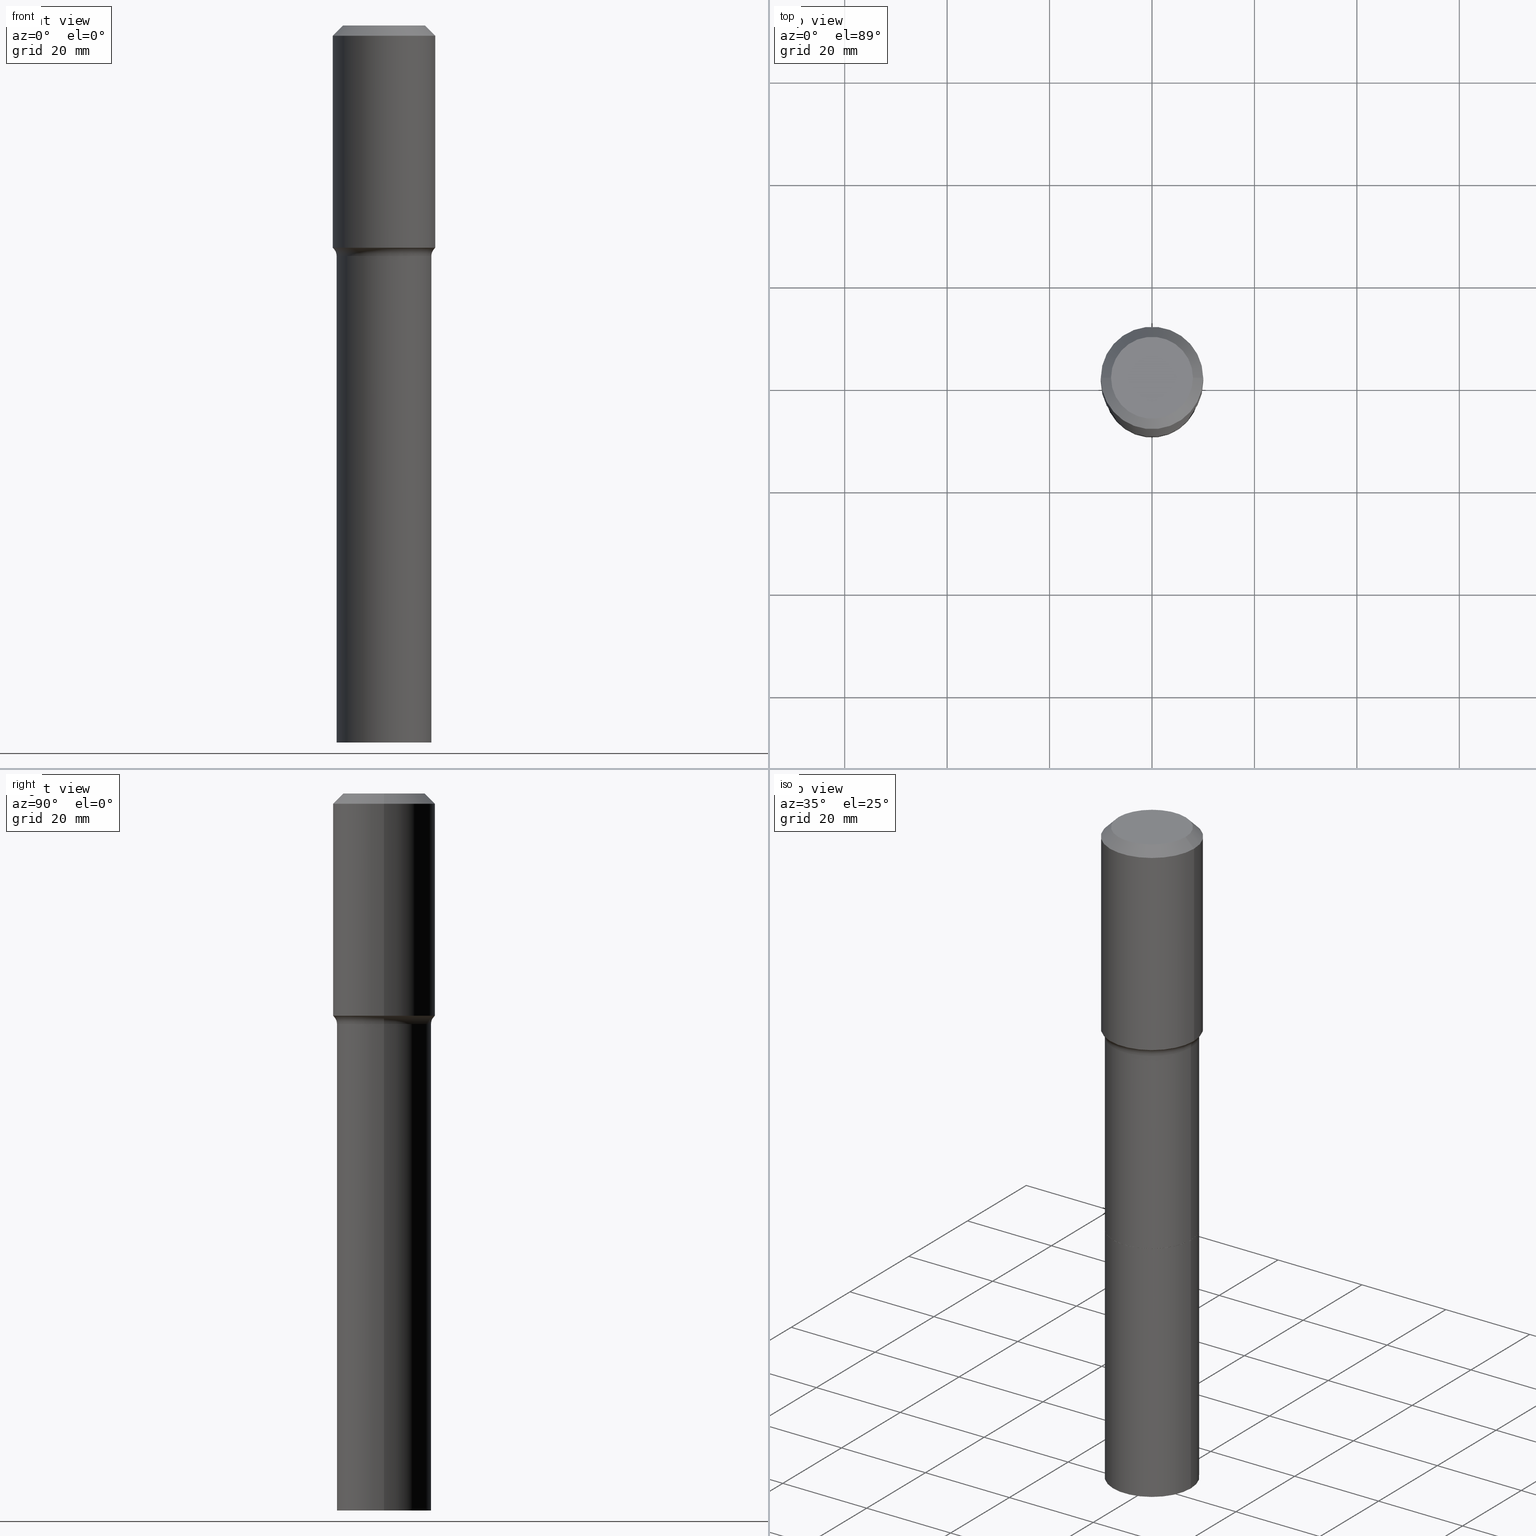
[diagram: canonical four-view strip — front | top / right | iso, engineering-drawing reading convention]
A machine part, canonical four-view strip (front | top / right | iso — engineering-drawing reading convention). The complete STEP part file that produces these views, byte-faithful:
ISO-10303-21;
HEADER;
FILE_DESCRIPTION (( 'STEP AP203' ),
    '1' );
FILE_NAME ('67811.STEP',
    '2025-04-01T15:30:50',
    ( '' ),
    ( '' ),
    'SwSTEP 2.0',
    'SolidWorks 2024',
    '' );
FILE_SCHEMA (( 'CONFIG_CONTROL_DESIGN' ));
ENDSEC;

DATA;
#1 = VERTEX_POINT ( 'NONE', #82 ) ;
#2 = EDGE_CURVE ( 'NONE', #196, #352, #4, .T. ) ;
#3 = ORIENTED_EDGE ( 'NONE', *, *, #448, .F. ) ;
#4 = CIRCLE ( 'NONE', #32, 0.3641499999999999737 ) ;
#5 = DIRECTION ( 'NONE',  ( 0.6819983600625072473, -2.208861293262565339E-15, 0.7313537016191622442 ) ) ;
#6 = CARTESIAN_POINT ( 'NONE',  ( -0.3937000000000000499, 2.474273165584572449E-15, -0.07874000000000053179 ) ) ;
#7 =( CONVERSION_BASED_UNIT ( 'INCH', #214 ) LENGTH_UNIT ( ) NAMED_UNIT ( #147 ) );
#8 = ORIENTED_EDGE ( 'NONE', *, *, #410, .T. ) ;
#9 = EDGE_CURVE ( 'NONE', #80, #358, #46, .T. ) ;
#10 = LINE ( 'NONE', #6, #250 ) ;
#11 = EDGE_CURVE ( 'NONE', #472, #232, #127, .T. ) ;
#12 = CARTESIAN_POINT ( 'NONE',  ( 1.347893496593123646E-28, -1.924434684343564878E-14, -5.511800000000000033 ) ) ;
#13 = AXIS2_PLACEMENT_3D ( 'NONE', #390, #194, #277 ) ;
#14 = AXIS2_PLACEMENT_3D ( 'NONE', #272, #24, #96 ) ;
#15 = DIRECTION ( 'NONE',  ( -2.445468806185136597E-29, 3.491481338843145583E-15, 1.000000000000000000 ) ) ;
#16 = DIRECTION ( 'NONE',  ( 1.000000000000000000, -6.982962677686263555E-15, 0.000000000000000000 ) ) ;
#17 = DIRECTION ( 'NONE',  ( 1.000000000000000000, -6.982962677686263555E-15, 0.000000000000000000 ) ) ;
#18 = CARTESIAN_POINT ( 'NONE',  ( 4.199457173566643198E-29, -5.995711872379897322E-15, -1.717240131194999853 ) ) ;
#19 = MECHANICAL_CONTEXT ( 'NONE', #222, 'mechanical' ) ;
#20 = DIRECTION ( 'NONE',  ( -1.000000000000000000, 6.982962677686265922E-15, -4.876176775795935793E-29 ) ) ;
#21 = PERSON_AND_ORGANIZATION_ROLE ( 'classification_officer' ) ;
#22 = AXIS2_PLACEMENT_3D ( 'NONE', #411, #295, #164 ) ;
#23 = CARTESIAN_POINT ( 'NONE',  ( 8.327554925702245883E-29, -1.188954140316256158E-14, -3.405299999999999994 ) ) ;
#24 = DIRECTION ( 'NONE',  ( -2.445468806185136597E-29, 3.491481338843145583E-15, 1.000000000000000000 ) ) ;
#25 = PRODUCT_DEFINITION_FORMATION_WITH_SPECIFIED_SOURCE ( 'ANY', '', #221, .NOT_KNOWN. ) ;
#26 = COORDINATED_UNIVERSAL_TIME_OFFSET ( 5, 0, .BEHIND. ) ;
#27 = FACE_OUTER_BOUND ( 'NONE', #39, .T. ) ;
#28 = VERTEX_POINT ( 'NONE', #518 ) ;
#29 = EDGE_CURVE ( 'NONE', #1, #407, #307, .T. ) ;
#30 = APPROVAL_STATUS ( 'not_yet_approved' ) ;
#31 = ORIENTED_EDGE ( 'NONE', *, *, #448, .T. ) ;
#32 = AXIS2_PLACEMENT_3D ( 'NONE', #402, #364, #40 ) ;
#33 = DIRECTION ( 'NONE',  ( -6.982962677686266711E-15, -1.000000000000000000, 3.491481338843145583E-15 ) ) ;
#34 = ORIENTED_EDGE ( 'NONE', *, *, #495, .T. ) ;
#35 = LOCAL_TIME ( 11, 30, 50.00000000000000000, #26 ) ;
#36 = ADVANCED_FACE ( 'NONE', ( #294 ), #449, .F. ) ;
#37 = EDGE_LOOP ( 'NONE', ( #482, #435 ) ) ;
#38 = SHAPE_DEFINITION_REPRESENTATION ( #125, #181 ) ;
#39 = EDGE_LOOP ( 'NONE', ( #310, #353 ) ) ;
#40 = DIRECTION ( 'NONE',  ( 1.000000000000000000, -6.982962677686263555E-15, 0.000000000000000000 ) ) ;
#41 = AXIS2_PLACEMENT_3D ( 'NONE', #83, #481, #90 ) ;
#42 = CIRCLE ( 'NONE', #243, 0.3937000000000000499 ) ;
#43 = ORIENTED_EDGE ( 'NONE', *, *, #280, .F. ) ;
#44 = ORIENTED_EDGE ( 'NONE', *, *, #330, .F. ) ;
#45 = DIRECTION ( 'NONE',  ( -2.445468806185136597E-29, 3.491481338843145583E-15, 1.000000000000000000 ) ) ;
#46 = LINE ( 'NONE', #208, #460 ) ;
#47 = VECTOR ( 'NONE', #88, 39.37007874015748143 ) ;
#48 = CARTESIAN_POINT ( 'NONE',  ( 4.332881630798825211E-29, -6.186206636162284593E-15, -1.771800000000000042 ) ) ;
#49 = VERTEX_POINT ( 'NONE', #218 ) ;
#50 = CARTESIAN_POINT ( 'NONE',  ( 8.328777660105338684E-29, -1.189128714383198387E-14, -3.405800000000000161 ) ) ;
#51 = APPROVAL ( #463, 'UNSPECIFIED' ) ;
#52 = MANIFOLD_SOLID_BREP ( 'Body-Move/Copy2[2]', #446 ) ;
#53 = CARTESIAN_POINT ( 'NONE',  ( 1.925562137990189780E-30, -2.749192406205111123E-16, -0.07874000000000053179 ) ) ;
#54 = CARTESIAN_POINT ( 'NONE',  ( -0.4441499999999997672, -3.030331075283801272E-15, -1.771800000000000042 ) ) ;
#55 = VECTOR ( 'NONE', #371, 39.37007874015748143 ) ;
#56 = CIRCLE ( 'NONE', #397, 0.3856417038704660349 ) ;
#57 = LOCAL_TIME ( 11, 30, 50.00000000000000000, #426 ) ;
#58 = LINE ( 'NONE', #464, #477 ) ;
#59 = DATE_AND_TIME ( #499, #57 ) ;
#60 = DIRECTION ( 'NONE',  ( -2.445468806185136597E-29, 3.491481338843145583E-15, 1.000000000000000000 ) ) ;
#61 = AXIS2_PLACEMENT_3D ( 'NONE', #12, #378, #16 ) ;
#62 = ADVANCED_FACE ( 'NONE', ( #409 ), #324, .T. ) ;
#63 = CARTESIAN_POINT ( 'NONE',  ( 4.332881630798825211E-29, -6.186206636162284593E-15, -1.771800000000000042 ) ) ;
#64 = COORDINATED_UNIVERSAL_TIME_OFFSET ( 5, 0, .BEHIND. ) ;
#65 = DIRECTION ( 'NONE',  ( -1.000000000000000000, 6.982962677686265922E-15, -4.876176775795935793E-29 ) ) ;
#66 = ORIENTED_EDGE ( 'NONE', *, *, #9, .F. ) ;
#67 = DIRECTION ( 'NONE',  ( -2.445468806185136877E-29, 3.491481338843145188E-15, 1.000000000000000000 ) ) ;
#68 = ORIENTED_EDGE ( 'NONE', *, *, #242, .F. ) ;
#69 = EDGE_LOOP ( 'NONE', ( #281, #240, #235, #249 ) ) ;
#70 = DIRECTION ( 'NONE',  ( -2.445468806185136597E-29, 3.491481338843145583E-15, 1.000000000000000000 ) ) ;
#71 = EDGE_CURVE ( 'NONE', #114, #212, #335, .T. ) ;
#72 = ORIENTED_EDGE ( 'NONE', *, *, #171, .T. ) ;
#73 = ORIENTED_EDGE ( 'NONE', *, *, #29, .T. ) ;
#74 = AXIS2_PLACEMENT_3D ( 'NONE', #260, #412, #453 ) ;
#75 = EDGE_CURVE ( 'NONE', #49, #360, #227, .T. ) ;
#76 = ORIENTED_EDGE ( 'NONE', *, *, #385, .T. ) ;
#77 = AXIS2_PLACEMENT_3D ( 'NONE', #48, #165, #323 ) ;
#78 = AXIS2_PLACEMENT_3D ( 'NONE', #461, #498, #139 ) ;
#79 = LOCAL_TIME ( 11, 30, 50.00000000000000000, #415 ) ;
#80 = VERTEX_POINT ( 'NONE', #173 ) ;
#81 = CC_DESIGN_PERSON_AND_ORGANIZATION_ASSIGNMENT ( #509, #134, ( #25 ) ) ;
#82 = CARTESIAN_POINT ( 'NONE',  ( -0.3641499999999998072, -6.450432647392020023E-15, -1.771800000000000042 ) ) ;
#83 = CARTESIAN_POINT ( 'NONE',  ( 4.178324741385413824E-29, -5.965540359899951370E-15, -1.708598666569574487 ) ) ;
#84 =( NAMED_UNIT ( * ) PLANE_ANGLE_UNIT ( ) SI_UNIT ( $, .RADIAN. ) );
#85 = DIRECTION ( 'NONE',  ( 1.000000000000000000, -6.982962677686263555E-15, 0.000000000000000000 ) ) ;
#86 = FACE_OUTER_BOUND ( 'NONE', #37, .T. ) ;
#87 = FACE_OUTER_BOUND ( 'NONE', #391, .T. ) ;
#88 = DIRECTION ( 'NONE',  ( -2.445468806185136877E-29, 3.491481338843145188E-15, 1.000000000000000000 ) ) ;
#89 = CARTESIAN_POINT ( 'NONE',  ( -4.713871149261283817E-47, 6.730158695841841775E-33, 1.927594061857935365E-18 ) ) ;
#90 = DIRECTION ( 'NONE',  ( 1.000000000000000000, -6.982962677686266711E-15, 0.000000000000000000 ) ) ;
#91 = DIRECTION ( 'NONE',  ( 1.000000000000000000, -6.982962677686265922E-15, 0.000000000000000000 ) ) ;
#92 = CC_DESIGN_PERSON_AND_ORGANIZATION_ASSIGNMENT ( #423, #224, ( #25 ) ) ;
#93 = CARTESIAN_POINT ( 'NONE',  ( 1.925562137990189780E-30, -2.749192406205111123E-16, -0.07874000000000053179 ) ) ;
#94 = TOROIDAL_SURFACE ( 'NONE', #77, 0.4441499999999997672, 0.08000000000000002942 ) ;
#95 = DIRECTION ( 'NONE',  ( 0.7071067811865452413, -7.319954787623248157E-15, -0.7071067811865497932 ) ) ;
#96 = DIRECTION ( 'NONE',  ( 1.000000000000000000, -6.982962677686263555E-15, 0.000000000000000000 ) ) ;
#97 = DIRECTION ( 'NONE',  ( -2.445468806185136597E-29, 3.491481338843145583E-15, 1.000000000000000000 ) ) ;
#98 = DIRECTION ( 'NONE',  ( 2.445468806185136597E-29, -3.491481338843145583E-15, -1.000000000000000000 ) ) ;
#99 = DIRECTION ( 'NONE',  ( 0.000000000000000000, 0.000000000000000000, 1.000000000000000000 ) ) ;
#100 = PLANE ( 'NONE',  #156 ) ;
#101 = EDGE_LOOP ( 'NONE', ( #428, #34 ) ) ;
#102 = FACE_OUTER_BOUND ( 'NONE', #140, .T. ) ;
#103 = CIRCLE ( 'NONE', #168, 0.3149600000000000177 ) ;
#104 = CC_DESIGN_DATE_AND_TIME_ASSIGNMENT ( #493, #341, ( #138 ) ) ;
#105 = DIRECTION ( 'NONE',  ( 1.000000000000000000, -6.982962677686265922E-15, 4.876176775795935232E-29 ) ) ;
#106 = ORIENTED_EDGE ( 'NONE', *, *, #202, .F. ) ;
#107 = APPROVAL_ROLE ( '' ) ;
#108 = CARTESIAN_POINT ( 'NONE',  ( 8.328777660105338684E-29, -1.189128714383198387E-14, -3.405800000000000161 ) ) ;
#109 = ADVANCED_FACE ( 'NONE', ( #458 ), #505, .T. ) ;
#110 = ORIENTED_EDGE ( 'NONE', *, *, #385, .F. ) ;
#111 = FACE_OUTER_BOUND ( 'NONE', #119, .T. ) ;
#112 = ORIENTED_EDGE ( 'NONE', *, *, #9, .T. ) ;
#113 = AXIS2_PLACEMENT_3D ( 'NONE', #210, #489, #174 ) ;
#114 = VERTEX_POINT ( 'NONE', #375 ) ;
#115 = ORIENTED_EDGE ( 'NONE', *, *, #144, .T. ) ;
#116 = EDGE_LOOP ( 'NONE', ( #154, #159 ) ) ;
#117 = DATE_AND_TIME ( #155, #279 ) ;
#118 = EDGE_LOOP ( 'NONE', ( #312, #368, #398, #395 ) ) ;
#119 = EDGE_LOOP ( 'NONE', ( #465, #160, #392, #3 ) ) ;
#120 = DIRECTION ( 'NONE',  ( -0.7071067811865452413, 2.468850131082233000E-15, -0.7071067811865497932 ) ) ;
#121 = ORIENTED_EDGE ( 'NONE', *, *, #182, .T. ) ;
#122 = DIRECTION ( 'NONE',  ( -2.445468806185136597E-29, 3.491481338843145583E-15, 1.000000000000000000 ) ) ;
#123 = ADVANCED_FACE ( 'NONE', ( #126 ), #430, .T. ) ;
#124 = CARTESIAN_POINT ( 'NONE',  ( 0.3641499999999998627, -2.542845859079452817E-15, 1.775659772906089126E-29 ) ) ;
#125 = PRODUCT_DEFINITION_SHAPE ( 'NONE', 'NONE',  #138 ) ;
#126 = FACE_OUTER_BOUND ( 'NONE', #393, .T. ) ;
#127 = CIRCLE ( 'NONE', #299, 0.3641499999999999737 ) ;
#128 = DIRECTION ( 'NONE',  ( 1.000000000000000000, -6.982962677686269866E-15, 0.000000000000000000 ) ) ;
#129 = LINE ( 'NONE', #290, #413 ) ;
#130 = CARTESIAN_POINT ( 'NONE',  ( 8.328777660105338684E-29, -1.189128714383198387E-14, -3.405800000000000161 ) ) ;
#131 =( LENGTH_UNIT ( ) NAMED_UNIT ( * ) SI_UNIT ( $, .METRE. ) );
#132 = EDGE_CURVE ( 'NONE', #350, #163, #510, .T. ) ;
#133 = DIRECTION ( 'NONE',  ( -0.6819983600625072473, 7.399397606724319708E-15, 0.7313537016191622442 ) ) ;
#134 = PERSON_AND_ORGANIZATION_ROLE ( 'creator' ) ;
#135 = CYLINDRICAL_SURFACE ( 'NONE', #314, 0.3641499999999998627 ) ;
#136 = DIRECTION ( 'NONE',  ( -2.445468806185136877E-29, 3.491481338843145188E-15, 1.000000000000000000 ) ) ;
#137 = SECURITY_CLASSIFICATION_LEVEL ( 'unclassified' ) ;
#138 = PRODUCT_DEFINITION ( 'UNKNOWN', '', #25, #501 ) ;
#139 = DIRECTION ( 'NONE',  ( 1.000000000000000000, -6.982962677686269866E-15, 0.000000000000000000 ) ) ;
#140 = EDGE_LOOP ( 'NONE', ( #110, #389, #276, #356 ) ) ;
#141 = PERSON_AND_ORGANIZATION ( #269, #195 ) ;
#142 = AXIS2_PLACEMENT_3D ( 'NONE', #18, #228, #492 ) ;
#143 = VECTOR ( 'NONE', #133, 39.37007874015748854 ) ;
#144 = EDGE_CURVE ( 'NONE', #350, #1, #284, .T. ) ;
#145 = VECTOR ( 'NONE', #136, 39.37007874015748143 ) ;
#146 = DIRECTION ( 'NONE',  ( -2.445468806185136597E-29, 3.491481338843145583E-15, 1.000000000000000000 ) ) ;
#147 = DIMENSIONAL_EXPONENTS ( 1.000000000000000000, 0.000000000000000000, 0.000000000000000000, 0.000000000000000000, 0.000000000000000000, 0.000000000000000000, 0.000000000000000000 ) ;
#148 = ORIENTED_EDGE ( 'NONE', *, *, #171, .F. ) ;
#149 = APPROVAL_DATE_TIME ( #59, #239 ) ;
#150 = EDGE_CURVE ( 'NONE', #28, #49, #129, .T. ) ;
#151 = LINE ( 'NONE', #311, #373 ) ;
#152 = ORIENTED_EDGE ( 'NONE', *, *, #132, .T. ) ;
#153 = CLOSED_SHELL ( 'NONE', ( #394, #293, #62, #399 ) ) ;
#154 = ORIENTED_EDGE ( 'NONE', *, *, #340, .F. ) ;
#155 = CALENDAR_DATE ( 2025, 1, 4 ) ;
#156 = AXIS2_PLACEMENT_3D ( 'NONE', #266, #421, #20 ) ;
#157 = CARTESIAN_POINT ( 'NONE',  ( 4.332881630798825211E-29, -6.186206636162284593E-15, -1.771800000000000042 ) ) ;
#158 = PRODUCT_RELATED_PRODUCT_CATEGORY ( 'detail', '', ( #221 ) ) ;
#159 = ORIENTED_EDGE ( 'NONE', *, *, #504, .F. ) ;
#160 = ORIENTED_EDGE ( 'NONE', *, *, #434, .T. ) ;
#161 = AXIS2_PLACEMENT_3D ( 'NONE', #253, #220, #372 ) ;
#162 = PLANE ( 'NONE',  #74 ) ;
#163 = VERTEX_POINT ( 'NONE', #298 ) ;
#164 = DIRECTION ( 'NONE',  ( 1.000000000000000000, -6.982962677686266711E-15, 0.000000000000000000 ) ) ;
#165 = DIRECTION ( 'NONE',  ( -2.445468806185136597E-29, 3.491481338843145583E-15, 1.000000000000000000 ) ) ;
#166 = ORIENTED_EDGE ( 'NONE', *, *, #330, .T. ) ;
#167 = DIRECTION ( 'NONE',  ( -1.000000000000000000, 6.982962677686265922E-15, -4.876176775795935793E-29 ) ) ;
#168 = AXIS2_PLACEMENT_3D ( 'NONE', #403, #122, #289 ) ;
#169 = CARTESIAN_POINT ( 'NONE',  ( 0.3636500000000000288, -1.443064152157259684E-14, -3.405800000000000161 ) ) ;
#170 = CIRCLE ( 'NONE', #14, 0.3641499999999999737 ) ;
#171 = EDGE_CURVE ( 'NONE', #350, #80, #56, .T. ) ;
#172 = AXIS2_PLACEMENT_3D ( 'NONE', #444, #490, #377 ) ;
#173 = CARTESIAN_POINT ( 'NONE',  ( 0.3856417038704662015, -8.688633497466701295E-15, -1.717240131194999853 ) ) ;
#174 = DIRECTION ( 'NONE',  ( 1.000000000000000000, -6.982962677686263555E-15, 0.000000000000000000 ) ) ;
#175 = DIRECTION ( 'NONE',  ( 1.000000000000000000, -6.982962677686269866E-15, 0.000000000000000000 ) ) ;
#176 = ADVANCED_FACE ( 'NONE', ( #365 ), #94, .F. ) ;
#177 = CARTESIAN_POINT ( 'NONE',  ( 0.3937000000000000499, -2.975897302343163203E-15, -0.07874000000000053179 ) ) ;
#178 = DIRECTION ( 'NONE',  ( 2.438088387897960049E-29, -3.491481338843145188E-15, -1.000000000000000000 ) ) ;
#179 = PERSON_AND_ORGANIZATION ( #269, #195 ) ;
#180 = DIRECTION ( 'NONE',  ( -0.7071067811864026886, 7.493145998869830357E-15, 0.7071067811866923458 ) ) ;
#181 = ADVANCED_BREP_SHAPE_REPRESENTATION ( '67811', ( #400, #52, #217 ), #488 ) ;
#182 = EDGE_CURVE ( 'NONE', #212, #429, #487, .T. ) ;
#183 = CARTESIAN_POINT ( 'NONE',  ( 1.925562137990189780E-30, -2.749192406205111123E-16, -0.07874000000000053179 ) ) ;
#184 = DATE_AND_TIME ( #230, #236 ) ;
#185 = CIRCLE ( 'NONE', #22, 0.3641499999999998072 ) ;
#186 = AXIS2_PLACEMENT_3D ( 'NONE', #231, #178, #65 ) ;
#187 = FACE_OUTER_BOUND ( 'NONE', #285, .T. ) ;
#188 = PERSON_AND_ORGANIZATION ( #269, #195 ) ;
#189 = LINE ( 'NONE', #219, #355 ) ;
#190 = ORIENTED_EDGE ( 'NONE', *, *, #29, .F. ) ;
#191 = FACE_OUTER_BOUND ( 'NONE', #203, .T. ) ;
#192 = DIRECTION ( 'NONE',  ( 1.000000000000000000, 0.000000000000000000, 0.000000000000000000 ) ) ;
#193 = CIRCLE ( 'NONE', #142, 0.3856417038704660349 ) ;
#194 = DIRECTION ( 'NONE',  ( -2.445468806185136597E-29, 3.491481338843145583E-15, 1.000000000000000000 ) ) ;
#195 = ORGANIZATION ( 'UNSPECIFIED', 'UNSPECIFIED', '' ) ;
#196 = VERTEX_POINT ( 'NONE', #445 ) ;
#197 = ORIENTED_EDGE ( 'NONE', *, *, #75, .F. ) ;
#198 = ORIENTED_EDGE ( 'NONE', *, *, #254, .F. ) ;
#199 = AXIS2_PLACEMENT_3D ( 'NONE', #483, #325, #408 ) ;
#200 = TOROIDAL_SURFACE ( 'NONE', #376, 0.4441499999999997672, 0.08000000000000002942 ) ;
#201 = EDGE_LOOP ( 'NONE', ( #401, #321, #237, #197 ) ) ;
#202 = EDGE_CURVE ( 'NONE', #358, #212, #261, .T. ) ;
#203 = EDGE_LOOP ( 'NONE', ( #475, #343, #68, #44 ) ) ;
#204 = EDGE_CURVE ( 'NONE', #358, #163, #469, .T. ) ;
#205 = EDGE_LOOP ( 'NONE', ( #480, #76, #229, #106 ) ) ;
#206 = DIRECTION ( 'NONE',  ( 1.000000000000000000, -6.982962677686265922E-15, 0.000000000000000000 ) ) ;
#207 = EDGE_CURVE ( 'NONE', #352, #196, #515, .T. ) ;
#208 = CARTESIAN_POINT ( 'NONE',  ( 0.3856417038704660349, -8.688633497466701295E-15, -1.717240131194999853 ) ) ;
#209 = AXIS2_PLACEMENT_3D ( 'NONE', #447, #15, #517 ) ;
#210 = CARTESIAN_POINT ( 'NONE',  ( 8.328777660105338684E-29, -1.189128714383198387E-14, -3.405800000000000161 ) ) ;
#211 = CIRCLE ( 'NONE', #172, 0.3149600000000000177 ) ;
#212 = VERTEX_POINT ( 'NONE', #332 ) ;
#213 = FACE_OUTER_BOUND ( 'NONE', #205, .T. ) ;
#214 = LENGTH_MEASURE_WITH_UNIT ( LENGTH_MEASURE( 0.02539999999999999897 ), #131 );
#215 = CIRCLE ( 'NONE', #476, 0.08000000000000002942 ) ;
#216 = CARTESIAN_POINT ( 'NONE',  ( 8.328777660105338684E-29, -1.189128714383198387E-14, -3.405800000000000161 ) ) ;
#217 = AXIS2_PLACEMENT_3D ( 'NONE', #418, #99, #192 ) ;
#218 = CARTESIAN_POINT ( 'NONE',  ( -0.3641499999999999737, -6.450432647392017657E-15, -3.405299999999999994 ) ) ;
#219 = CARTESIAN_POINT ( 'NONE',  ( -0.3641499999999999737, -9.303845771561579230E-15, -3.405800000000000161 ) ) ;
#220 = DIRECTION ( 'NONE',  ( -2.445468806185136597E-29, 3.491481338843145583E-15, 1.000000000000000000 ) ) ;
#221 = PRODUCT ( '67811', '67811', '', ( #19 ) ) ;
#222 = APPLICATION_CONTEXT ( 'configuration controlled 3d designs of mechanical parts and assemblies' ) ;
#223 = CARTESIAN_POINT ( 'NONE',  ( 0.3641499999999999737, -1.443238726224201597E-14, -3.405299999999999994 ) ) ;
#224 = PERSON_AND_ORGANIZATION_ROLE ( 'design_supplier' ) ;
#225 = AXIS2_PLACEMENT_3D ( 'NONE', #108, #416, #275 ) ;
#226 = DATE_AND_TIME ( #346, #79 ) ;
#227 = CIRCLE ( 'NONE', #313, 0.3641499999999999737 ) ;
#228 = DIRECTION ( 'NONE',  ( -2.445468806185136597E-29, 3.491481338843145583E-15, 1.000000000000000000 ) ) ;
#229 = ORIENTED_EDGE ( 'NONE', *, *, #182, .F. ) ;
#230 = CALENDAR_DATE ( 2025, 1, 4 ) ;
#231 = CARTESIAN_POINT ( 'NONE',  ( 1.347893496593123646E-28, -1.924434684343564878E-14, -5.511800000000000033 ) ) ;
#232 = VERTEX_POINT ( 'NONE', #500 ) ;
#233 = ADVANCED_FACE ( 'NONE', ( #102 ), #396, .T. ) ;
#234 = CARTESIAN_POINT ( 'NONE',  ( -0.3149600000000000177, 2.336813545274319235E-15, 3.855188123700009542E-18 ) ) ;
#235 = ORIENTED_EDGE ( 'NONE', *, *, #419, .T. ) ;
#236 = LOCAL_TIME ( 11, 30, 50.00000000000000000, #64 ) ;
#237 = ORIENTED_EDGE ( 'NONE', *, *, #280, .T. ) ;
#238 = CONICAL_SURFACE ( 'NONE', #467, 0.3636500000000000288, 0.7853981633972434429 ) ;
#239 = APPROVAL ( #30, 'UNSPECIFIED' ) ;
#240 = ORIENTED_EDGE ( 'NONE', *, *, #410, .F. ) ;
#241 = ORIENTED_EDGE ( 'NONE', *, *, #2, .T. ) ;
#242 = EDGE_CURVE ( 'NONE', #232, #472, #494, .T. ) ;
#243 = AXIS2_PLACEMENT_3D ( 'NONE', #252, #441, #206 ) ;
#244 = ORIENTED_EDGE ( 'NONE', *, *, #11, .F. ) ;
#245 = EDGE_CURVE ( 'NONE', #163, #358, #406, .T. ) ;
#246 = ORIENTED_EDGE ( 'NONE', *, *, #75, .T. ) ;
#247 = DIRECTION ( 'NONE',  ( 1.000000000000000000, -6.982962677686266711E-15, 4.876176775795935793E-29 ) ) ;
#248 = CARTESIAN_POINT ( 'NONE',  ( 4.199457173566643198E-29, -5.995711872379897322E-15, -1.717240131194999853 ) ) ;
#249 = ORIENTED_EDGE ( 'NONE', *, *, #263, .T. ) ;
#250 = VECTOR ( 'NONE', #120, 39.37007874015748143 ) ;
#251 = CONICAL_SURFACE ( 'NONE', #422, 0.3636500000000000288, 0.7853981633972434429 ) ;
#252 = CARTESIAN_POINT ( 'NONE',  ( 1.925562137990189780E-30, -2.749192406205111123E-16, -0.07874000000000053179 ) ) ;
#253 = CARTESIAN_POINT ( 'NONE',  ( 4.178324741385413824E-29, -5.965540359899951370E-15, -1.708598666569574487 ) ) ;
#254 = EDGE_CURVE ( 'NONE', #425, #429, #10, .T. ) ;
#255 = APPROVAL ( #303, 'UNSPECIFIED' ) ;
#256 = DIRECTION ( 'NONE',  ( -2.445468806185136597E-29, 3.491481338843145583E-15, 1.000000000000000000 ) ) ;
#257 = CARTESIAN_POINT ( 'NONE',  ( 0.3636500000000000288, -1.443064152157259684E-14, -3.405800000000000161 ) ) ;
#258 = LINE ( 'NONE', #124, #55 ) ;
#259 = DIRECTION ( 'NONE',  ( 2.438088387897960049E-29, -3.491481338843145188E-15, -1.000000000000000000 ) ) ;
#260 = CARTESIAN_POINT ( 'NONE',  ( 8.328777660105338684E-29, -1.189128714383198387E-14, -3.405800000000000161 ) ) ;
#261 = LINE ( 'NONE', #491, #47 ) ;
#262 = APPROVAL_ROLE ( '' ) ;
#263 = EDGE_CURVE ( 'NONE', #407, #1, #185, .T. ) ;
#264 = DIRECTION ( 'NONE',  ( 2.445468806185136597E-29, -3.491481338843145583E-15, -1.000000000000000000 ) ) ;
#265 = FACE_OUTER_BOUND ( 'NONE', #118, .T. ) ;
#266 = CARTESIAN_POINT ( 'NONE',  ( 8.328777660105338684E-29, -1.189128714383198387E-14, -3.405800000000000161 ) ) ;
#267 = APPROVAL_DATE_TIME ( #226, #255 ) ;
#268 = VECTOR ( 'NONE', #296, 39.37007874015748143 ) ;
#269 = PERSON ( 'UNSPECIFIED', 'UNSPECIFIED', 'UNSPECIFIED', ('UNSPECIFIED'), ('UNSPECIFIED'), ('UNSPECIFIED') ) ;
#270 = CC_DESIGN_APPROVAL ( #239, ( #25 ) ) ;
#271 = ADVANCED_FACE ( 'NONE', ( #287 ), #420, .T. ) ;
#272 = CARTESIAN_POINT ( 'NONE',  ( 8.327554925702245883E-29, -1.188954140316256158E-14, -3.405299999999999994 ) ) ;
#273 = COORDINATED_UNIVERSAL_TIME_OFFSET ( 5, 0, .BEHIND. ) ;
#274 = ADVANCED_FACE ( 'NONE', ( #213 ), #331, .T. ) ;
#275 = DIRECTION ( 'NONE',  ( 1.000000000000000000, -6.982962677686263555E-15, 0.000000000000000000 ) ) ;
#276 = ORIENTED_EDGE ( 'NONE', *, *, #202, .T. ) ;
#277 = DIRECTION ( 'NONE',  ( 1.000000000000000000, -6.982962677686265922E-15, 4.876176775795935232E-29 ) ) ;
#278 = ORIENTED_EDGE ( 'NONE', *, *, #245, .F. ) ;
#279 = LOCAL_TIME ( 11, 30, 50.00000000000000000, #273 ) ;
#280 = EDGE_CURVE ( 'NONE', #514, #360, #443, .T. ) ;
#281 = ORIENTED_EDGE ( 'NONE', *, *, #144, .F. ) ;
#282 = ORIENTED_EDGE ( 'NONE', *, *, #204, .F. ) ;
#283 = CARTESIAN_POINT ( 'NONE',  ( 0.000000000000000000, 0.000000000000000000, 0.000000000000000000 ) ) ;
#284 = CIRCLE ( 'NONE', #436, 0.08000000000000002942 ) ;
#285 = EDGE_LOOP ( 'NONE', ( #437, #246, #31, #190 ) ) ;
#286 = ORIENTED_EDGE ( 'NONE', *, *, #379, .F. ) ;
#287 = FACE_OUTER_BOUND ( 'NONE', #319, .T. ) ;
#288 = ORIENTED_EDGE ( 'NONE', *, *, #71, .T. ) ;
#289 = DIRECTION ( 'NONE',  ( 1.000000000000000000, -6.982962677686265922E-15, 4.876223630392693006E-29 ) ) ;
#290 = CARTESIAN_POINT ( 'NONE',  ( -0.3636500000000000288, -9.307398485240379340E-15, -3.405800000000000161 ) ) ;
#291 = EDGE_CURVE ( 'NONE', #425, #114, #103, .T. ) ;
#292 = DIRECTION ( 'NONE',  ( 1.000000000000000000, -6.982962677686265922E-15, 0.000000000000000000 ) ) ;
#293 = ADVANCED_FACE ( 'NONE', ( #86 ), #496, .T. ) ;
#294 = FACE_OUTER_BOUND ( 'NONE', #101, .T. ) ;
#295 = DIRECTION ( 'NONE',  ( -2.445468806185136597E-29, 3.491481338843145583E-15, 1.000000000000000000 ) ) ;
#296 = DIRECTION ( 'NONE',  ( 0.7071067811864026886, -2.468850131080739687E-15, 0.7071067811866923458 ) ) ;
#297 = FACE_OUTER_BOUND ( 'NONE', #116, .T. ) ;
#298 = CARTESIAN_POINT ( 'NONE',  ( -0.3937000000000002164, -3.168133609212435400E-15, -1.708598666569574487 ) ) ;
#299 = AXIS2_PLACEMENT_3D ( 'NONE', #322, #442, #85 ) ;
#300 = CC_DESIGN_APPROVAL ( #255, ( #138 ) ) ;
#301 = DIRECTION ( 'NONE',  ( 1.000000000000000000, -6.982962677686263555E-15, 0.000000000000000000 ) ) ;
#302 = CYLINDRICAL_SURFACE ( 'NONE', #225, 0.3641499999999999737 ) ;
#303 = APPROVAL_STATUS ( 'not_yet_approved' ) ;
#304 = CARTESIAN_POINT ( 'NONE',  ( -0.3856417038704662015, -3.255562759466822609E-15, -1.717240131194999853 ) ) ;
#305 = ORIENTED_EDGE ( 'NONE', *, *, #419, .F. ) ;
#306 = APPROVAL_ROLE ( '' ) ;
#307 = CIRCLE ( 'NONE', #455, 0.3641499999999998072 ) ;
#308 = CC_DESIGN_PERSON_AND_ORGANIZATION_ASSIGNMENT ( #382, #21, ( #516 ) ) ;
#309 = DIRECTION ( 'NONE',  ( -2.445468806185136877E-29, 3.491481338843145188E-15, 1.000000000000000000 ) ) ;
#310 = ORIENTED_EDGE ( 'NONE', *, *, #242, .T. ) ;
#311 = CARTESIAN_POINT ( 'NONE',  ( -0.3641499999999998627, 2.587441372270403851E-15, -1.791230213116323002E-29 ) ) ;
#312 = ORIENTED_EDGE ( 'NONE', *, *, #71, .F. ) ;
#313 = AXIS2_PLACEMENT_3D ( 'NONE', #23, #256, #301 ) ;
#314 = AXIS2_PLACEMENT_3D ( 'NONE', #386, #146, #105 ) ;
#315 = CC_DESIGN_SECURITY_CLASSIFICATION ( #516, ( #25 ) ) ;
#316 = ORIENTED_EDGE ( 'NONE', *, *, #132, .F. ) ;
#317 = DIRECTION ( 'NONE',  ( -2.445468806185136597E-29, 3.491481338843145583E-15, 1.000000000000000000 ) ) ;
#318 = EDGE_CURVE ( 'NONE', #196, #472, #189, .T. ) ;
#319 = EDGE_LOOP ( 'NONE', ( #8, #152, #282, #66 ) ) ;
#320 = AXIS2_PLACEMENT_3D ( 'NONE', #89, #259, #167 ) ;
#321 = ORIENTED_EDGE ( 'NONE', *, *, #504, .T. ) ;
#322 = CARTESIAN_POINT ( 'NONE',  ( 8.328777660105338684E-29, -1.189128714383198387E-14, -3.405800000000000161 ) ) ;
#323 = DIRECTION ( 'NONE',  ( 1.000000000000000000, -6.982962677686265133E-15, 4.883557194083112901E-29 ) ) ;
#324 = CYLINDRICAL_SURFACE ( 'NONE', #347, 0.3641499999999999737 ) ;
#325 = DIRECTION ( 'NONE',  ( -2.445468806185136597E-29, 3.491481338843145583E-15, 1.000000000000000000 ) ) ;
#326 = CC_DESIGN_PERSON_AND_ORGANIZATION_ASSIGNMENT ( #179, #503, ( #138 ) ) ;
#327 = CARTESIAN_POINT ( 'NONE',  ( -0.3856417038704660349, -3.255562759466823397E-15, -1.717240131194999853 ) ) ;
#328 = AXIS2_PLACEMENT_3D ( 'NONE', #440, #486, #247 ) ;
#329 = APPROVAL_PERSON_ORGANIZATION ( #384, #255, #306 ) ;
#330 = EDGE_CURVE ( 'NONE', #352, #232, #58, .T. ) ;
#331 = CYLINDRICAL_SURFACE ( 'NONE', #328, 0.3937000000000001054 ) ;
#332 = CARTESIAN_POINT ( 'NONE',  ( 0.3937000000000000499, -3.024111646825594378E-15, -0.07874000000000053179 ) ) ;
#333 = CARTESIAN_POINT ( 'NONE',  ( 8.328777660105338684E-29, -1.189128714383198387E-14, -3.405800000000000161 ) ) ;
#334 = CALENDAR_DATE ( 2025, 1, 4 ) ;
#335 = LINE ( 'NONE', #177, #354 ) ;
#336 = CARTESIAN_POINT ( 'NONE',  ( 0.4441499999999997672, -9.287689509456639063E-15, -1.771800000000000042 ) ) ;
#337 = AXIS2_PLACEMENT_3D ( 'NONE', #283, #70, #468 ) ;
#338 = PERSON_AND_ORGANIZATION ( #269, #195 ) ;
#339 = DIRECTION ( 'NONE',  ( 1.000000000000000000, -6.982962677686269866E-15, 0.000000000000000000 ) ) ;
#340 = EDGE_CURVE ( 'NONE', #514, #28, #507, .T. ) ;
#341 = DATE_TIME_ROLE ( 'creation_date' ) ;
#342 = DIRECTION ( 'NONE',  ( -2.445468806185136877E-29, 3.491481338843145188E-15, 1.000000000000000000 ) ) ;
#343 = ORIENTED_EDGE ( 'NONE', *, *, #318, .T. ) ;
#344 = DATE_TIME_ROLE ( 'classification_date' ) ;
#345 = CC_DESIGN_DATE_AND_TIME_ASSIGNMENT ( #184, #344, ( #516 ) ) ;
#346 = CALENDAR_DATE ( 2025, 1, 4 ) ;
#347 = AXIS2_PLACEMENT_3D ( 'NONE', #130, #97, #17 ) ;
#348 = ADVANCED_FACE ( 'NONE', ( #265 ), #470, .T. ) ;
#349 = CYLINDRICAL_SURFACE ( 'NONE', #13, 0.3641499999999998627 ) ;
#350 = VERTEX_POINT ( 'NONE', #304 ) ;
#351 = CC_DESIGN_PERSON_AND_ORGANIZATION_ASSIGNMENT ( #141, #457, ( #221 ) ) ;
#352 = VERTEX_POINT ( 'NONE', #417 ) ;
#353 = ORIENTED_EDGE ( 'NONE', *, *, #11, .T. ) ;
#354 = VECTOR ( 'NONE', #95, 39.37007874015748143 ) ;
#355 = VECTOR ( 'NONE', #309, 39.37007874015748143 ) ;
#356 = ORIENTED_EDGE ( 'NONE', *, *, #479, .F. ) ;
#357 = ADVANCED_FACE ( 'NONE', ( #187 ), #135, .T. ) ;
#358 = VERTEX_POINT ( 'NONE', #427 ) ;
#359 = ADVANCED_FACE ( 'NONE', ( #506 ), #251, .T. ) ;
#360 = VERTEX_POINT ( 'NONE', #223 ) ;
#361 = DIRECTION ( 'NONE',  ( -2.445468806185136597E-29, 3.491481338843145583E-15, 1.000000000000000000 ) ) ;
#362 = AXIS2_PLACEMENT_3D ( 'NONE', #53, #264, #485 ) ;
#363 = AXIS2_PLACEMENT_3D ( 'NONE', #50, #361, #128 ) ;
#364 = DIRECTION ( 'NONE',  ( -2.445468806185136597E-29, 3.491481338843145583E-15, 1.000000000000000000 ) ) ;
#365 = FACE_OUTER_BOUND ( 'NONE', #473, .T. ) ;
#366 = APPROVAL_DATE_TIME ( #117, #51 ) ;
#367 = ADVANCED_FACE ( 'NONE', ( #383 ), #200, .F. ) ;
#368 = ORIENTED_EDGE ( 'NONE', *, *, #291, .F. ) ;
#369 = CARTESIAN_POINT ( 'NONE',  ( -0.3641499999999999737, -1.298037562136341247E-14, -3.405800000000000161 ) ) ;
#370 = UNCERTAINTY_MEASURE_WITH_UNIT (LENGTH_MEASURE( 1.000000000000000082E-05 ), #7, 'distance_accuracy_value', 'NONE');
#371 = DIRECTION ( 'NONE',  ( -2.445468806185136877E-29, 3.491481338843145188E-15, 1.000000000000000000 ) ) ;
#372 = DIRECTION ( 'NONE',  ( 1.000000000000000000, -6.982962677686266711E-15, 0.000000000000000000 ) ) ;
#373 = VECTOR ( 'NONE', #67, 39.37007874015748143 ) ;
#374 = AXIS2_PLACEMENT_3D ( 'NONE', #93, #484, #292 ) ;
#375 = CARTESIAN_POINT ( 'NONE',  ( 0.3149600000000000177, -2.568339875860642378E-15, 3.855188123732540039E-18 ) ) ;
#376 = AXIS2_PLACEMENT_3D ( 'NONE', #63, #60, #459 ) ;
#377 = DIRECTION ( 'NONE',  ( 1.000000000000000000, -6.982962677686265922E-15, 4.876223630392693006E-29 ) ) ;
#378 = DIRECTION ( 'NONE',  ( -2.445468806185136597E-29, 3.491481338843145583E-15, 1.000000000000000000 ) ) ;
#379 = EDGE_CURVE ( 'NONE', #360, #49, #170, .T. ) ;
#380 = CARTESIAN_POINT ( 'NONE',  ( 0.3641499999999998072, -8.729052495241737410E-15, -1.771800000000000042 ) ) ;
#381 = CARTESIAN_POINT ( 'NONE',  ( -0.3937000000000001054, 2.797406750687515181E-15, -1.936584745033357016E-29 ) ) ;
#382 = PERSON_AND_ORGANIZATION ( #269, #195 ) ;
#383 = FACE_OUTER_BOUND ( 'NONE', #69, .T. ) ;
#384 = PERSON_AND_ORGANIZATION ( #269, #195 ) ;
#385 = EDGE_CURVE ( 'NONE', #163, #429, #424, .T. ) ;
#386 = CARTESIAN_POINT ( 'NONE',  ( 0.000000000000000000, 0.000000000000000000, 0.000000000000000000 ) ) ;
#387 = ORIENTED_EDGE ( 'NONE', *, *, #340, .T. ) ;
#388 = APPLICATION_PROTOCOL_DEFINITION ( 'international standard', 'config_control_design', 1994, #512 ) ;
#389 = ORIENTED_EDGE ( 'NONE', *, *, #245, .T. ) ;
#390 = CARTESIAN_POINT ( 'NONE',  ( 0.000000000000000000, 0.000000000000000000, 0.000000000000000000 ) ) ;
#391 = EDGE_LOOP ( 'NONE', ( #387, #513, #286, #43 ) ) ;
#392 = ORIENTED_EDGE ( 'NONE', *, *, #263, .F. ) ;
#393 = EDGE_LOOP ( 'NONE', ( #316, #72, #112, #278 ) ) ;
#394 = ADVANCED_FACE ( 'NONE', ( #191 ), #302, .T. ) ;
#395 = ORIENTED_EDGE ( 'NONE', *, *, #479, .T. ) ;
#396 = CYLINDRICAL_SURFACE ( 'NONE', #337, 0.3937000000000001054 ) ;
#397 = AXIS2_PLACEMENT_3D ( 'NONE', #248, #405, #91 ) ;
#398 = ORIENTED_EDGE ( 'NONE', *, *, #254, .T. ) ;
#399 = ADVANCED_FACE ( 'NONE', ( #27 ), #100, .F. ) ;
#400 = MANIFOLD_SOLID_BREP ( 'Body-Move/Copy2[1]', #153 ) ;
#401 = ORIENTED_EDGE ( 'NONE', *, *, #150, .F. ) ;
#402 = CARTESIAN_POINT ( 'NONE',  ( 1.347893496593123646E-28, -1.924434684343564878E-14, -5.511800000000000033 ) ) ;
#403 = CARTESIAN_POINT ( 'NONE',  ( -9.427742298522567634E-47, 1.346031739168368355E-32, 3.855188123715870730E-18 ) ) ;
#404 =( NAMED_UNIT ( * ) SI_UNIT ( $, .STERADIAN. ) SOLID_ANGLE_UNIT ( ) );
#405 = DIRECTION ( 'NONE',  ( -2.445468806185136597E-29, 3.491481338843145583E-15, 1.000000000000000000 ) ) ;
#406 = CIRCLE ( 'NONE', #41, 0.3937000000000002164 ) ;
#407 = VERTEX_POINT ( 'NONE', #380 ) ;
#408 = DIRECTION ( 'NONE',  ( 1.000000000000000000, -6.982962677686265922E-15, 0.000000000000000000 ) ) ;
#409 = FACE_OUTER_BOUND ( 'NONE', #439, .T. ) ;
#410 = EDGE_CURVE ( 'NONE', #80, #350, #193, .T. ) ;
#411 = CARTESIAN_POINT ( 'NONE',  ( 4.332881630798825211E-29, -6.186206636162284593E-15, -1.771800000000000042 ) ) ;
#412 = DIRECTION ( 'NONE',  ( -2.438088387897960049E-29, 3.491481338843145188E-15, 1.000000000000000000 ) ) ;
#413 = VECTOR ( 'NONE', #180, 39.37007874015748143 ) ;
#414 = APPROVAL_PERSON_ORGANIZATION ( #188, #239, #262 ) ;
#415 = COORDINATED_UNIVERSAL_TIME_OFFSET ( 5, 0, .BEHIND. ) ;
#416 = DIRECTION ( 'NONE',  ( -2.445468806185136597E-29, 3.491481338843145583E-15, 1.000000000000000000 ) ) ;
#417 = CARTESIAN_POINT ( 'NONE',  ( 0.3641499999999999737, -2.178719270251510160E-14, -5.511800000000000033 ) ) ;
#418 = CARTESIAN_POINT ( 'NONE',  ( 0.000000000000000000, 0.000000000000000000, 0.000000000000000000 ) ) ;
#419 = EDGE_CURVE ( 'NONE', #80, #407, #215, .T. ) ;
#420 = CONICAL_SURFACE ( 'NONE', #199, 0.3856417038704660349, 0.7504915783575737409 ) ;
#421 = DIRECTION ( 'NONE',  ( 2.438088387897960049E-29, -3.491481338843145188E-15, -1.000000000000000000 ) ) ;
#422 = AXIS2_PLACEMENT_3D ( 'NONE', #333, #456, #339 ) ;
#423 = PERSON_AND_ORGANIZATION ( #269, #195 ) ;
#424 = LINE ( 'NONE', #381, #145 ) ;
#425 = VERTEX_POINT ( 'NONE', #234 ) ;
#426 = COORDINATED_UNIVERSAL_TIME_OFFSET ( 5, 0, .BEHIND. ) ;
#427 = CARTESIAN_POINT ( 'NONE',  ( 0.3937000000000002164, -8.714732766105035375E-15, -1.708598666569574487 ) ) ;
#428 = ORIENTED_EDGE ( 'NONE', *, *, #291, .T. ) ;
#429 = VERTEX_POINT ( 'NONE', #511 ) ;
#430 = CONICAL_SURFACE ( 'NONE', #209, 0.3856417038704660349, 0.7504915783575737409 ) ;
#431 = EDGE_LOOP ( 'NONE', ( #433, #288, #121, #198 ) ) ;
#432 = ADVANCED_FACE ( 'NONE', ( #111 ), #349, .T. ) ;
#433 = ORIENTED_EDGE ( 'NONE', *, *, #495, .F. ) ;
#434 = EDGE_CURVE ( 'NONE', #49, #1, #151, .T. ) ;
#435 = ORIENTED_EDGE ( 'NONE', *, *, #2, .F. ) ;
#436 = AXIS2_PLACEMENT_3D ( 'NONE', #54, #451, #454 ) ;
#437 = ORIENTED_EDGE ( 'NONE', *, *, #434, .F. ) ;
#438 = ADVANCED_FACE ( 'NONE', ( #297 ), #162, .F. ) ;
#439 = EDGE_LOOP ( 'NONE', ( #508, #241, #166, #244 ) ) ;
#440 = CARTESIAN_POINT ( 'NONE',  ( 0.000000000000000000, 0.000000000000000000, 0.000000000000000000 ) ) ;
#441 = DIRECTION ( 'NONE',  ( -2.445468806185136597E-29, 3.491481338843145583E-15, 1.000000000000000000 ) ) ;
#442 = DIRECTION ( 'NONE',  ( -2.445468806185136597E-29, 3.491481338843145583E-15, 1.000000000000000000 ) ) ;
#443 = LINE ( 'NONE', #257, #268 ) ;
#444 = CARTESIAN_POINT ( 'NONE',  ( -9.427742298522567634E-47, 1.346031739168368355E-32, 3.855188123715870730E-18 ) ) ;
#445 = CARTESIAN_POINT ( 'NONE',  ( -0.3641499999999999737, -1.298037562136341247E-14, -5.511800000000000033 ) ) ;
#446 = CLOSED_SHELL ( 'NONE', ( #474, #109, #274, #271, #176, #432, #357, #367, #123, #233, #348, #36, #438, #359 ) ) ;
#447 = CARTESIAN_POINT ( 'NONE',  ( 4.199457173566643198E-29, -5.995711872379897322E-15, -1.717240131194999853 ) ) ;
#448 = EDGE_CURVE ( 'NONE', #360, #407, #258, .T. ) ;
#449 = PLANE ( 'NONE',  #320 ) ;
#450 = APPLICATION_PROTOCOL_DEFINITION ( 'international standard', 'config_control_design', 1994, #222 ) ;
#451 = DIRECTION ( 'NONE',  ( 7.105427357601001859E-15, 1.000000000000000000, -3.491481338843145583E-15 ) ) ;
#452 = DIRECTION ( 'NONE',  ( 1.000000000000000000, -6.982962677686266711E-15, 0.000000000000000000 ) ) ;
#453 = DIRECTION ( 'NONE',  ( 1.000000000000000000, -6.982962677686265922E-15, 4.876176775795935793E-29 ) ) ;
#454 = DIRECTION ( 'NONE',  ( -1.000000000000000000, 7.105427357601001859E-15, 0.000000000000000000 ) ) ;
#455 = AXIS2_PLACEMENT_3D ( 'NONE', #157, #317, #452 ) ;
#456 = DIRECTION ( 'NONE',  ( -2.445468806185136597E-29, 3.491481338843145583E-15, 1.000000000000000000 ) ) ;
#457 = PERSON_AND_ORGANIZATION_ROLE ( 'design_owner' ) ;
#458 = FACE_OUTER_BOUND ( 'NONE', #431, .T. ) ;
#459 = DIRECTION ( 'NONE',  ( 1.000000000000000000, -6.982962677686265133E-15, 4.883557194083112901E-29 ) ) ;
#460 = VECTOR ( 'NONE', #5, 39.37007874015748854 ) ;
#461 = CARTESIAN_POINT ( 'NONE',  ( 8.328777660105338684E-29, -1.189128714383198387E-14, -3.405800000000000161 ) ) ;
#462 = AXIS2_PLACEMENT_3D ( 'NONE', #183, #98, #502 ) ;
#463 = APPROVAL_STATUS ( 'not_yet_approved' ) ;
#464 = CARTESIAN_POINT ( 'NONE',  ( 0.3641499999999999737, -1.443413300291143827E-14, -3.405800000000000161 ) ) ;
#465 = ORIENTED_EDGE ( 'NONE', *, *, #379, .T. ) ;
#466 = DIRECTION ( 'NONE',  ( 1.000000000000000000, -6.982962677686257244E-15, 0.000000000000000000 ) ) ;
#467 = AXIS2_PLACEMENT_3D ( 'NONE', #216, #45, #175 ) ;
#468 = DIRECTION ( 'NONE',  ( 1.000000000000000000, -6.982962677686266711E-15, 4.876176775795935793E-29 ) ) ;
#469 = CIRCLE ( 'NONE', #161, 0.3937000000000002164 ) ;
#470 = CONICAL_SURFACE ( 'NONE', #462, 0.3937000000000000499, 0.7853981633974450594 ) ;
#471 = APPROVAL_PERSON_ORGANIZATION ( #338, #51, #107 ) ;
#472 = VERTEX_POINT ( 'NONE', #369 ) ;
#473 = EDGE_LOOP ( 'NONE', ( #148, #115, #73, #305 ) ) ;
#474 = ADVANCED_FACE ( 'NONE', ( #87 ), #238, .T. ) ;
#475 = ORIENTED_EDGE ( 'NONE', *, *, #207, .T. ) ;
#476 = AXIS2_PLACEMENT_3D ( 'NONE', #336, #33, #466 ) ;
#477 = VECTOR ( 'NONE', #342, 39.37007874015748143 ) ;
#478 = CC_DESIGN_APPROVAL ( #51, ( #516 ) ) ;
#479 = EDGE_CURVE ( 'NONE', #429, #212, #42, .T. ) ;
#480 = ORIENTED_EDGE ( 'NONE', *, *, #204, .T. ) ;
#481 = DIRECTION ( 'NONE',  ( -2.445468806185136597E-29, 3.491481338843145583E-15, 1.000000000000000000 ) ) ;
#482 = ORIENTED_EDGE ( 'NONE', *, *, #207, .F. ) ;
#483 = CARTESIAN_POINT ( 'NONE',  ( 4.199457173566643198E-29, -5.995711872379897322E-15, -1.717240131194999853 ) ) ;
#484 = DIRECTION ( 'NONE',  ( -2.445468806185136597E-29, 3.491481338843145583E-15, 1.000000000000000000 ) ) ;
#485 = DIRECTION ( 'NONE',  ( -1.000000000000000000, 6.982962677686265922E-15, 0.000000000000000000 ) ) ;
#486 = DIRECTION ( 'NONE',  ( -2.445468806185136597E-29, 3.491481338843145583E-15, 1.000000000000000000 ) ) ;
#487 = CIRCLE ( 'NONE', #374, 0.3937000000000000499 ) ;
#488 =( GEOMETRIC_REPRESENTATION_CONTEXT ( 3 ) GLOBAL_UNCERTAINTY_ASSIGNED_CONTEXT ( ( #370 ) ) GLOBAL_UNIT_ASSIGNED_CONTEXT ( ( #7, #84, #404 ) ) REPRESENTATION_CONTEXT ( 'NONE', 'WORKASPACE' ) );
#489 = DIRECTION ( 'NONE',  ( -2.445468806185136597E-29, 3.491481338843145583E-15, 1.000000000000000000 ) ) ;
#490 = DIRECTION ( 'NONE',  ( -2.445468806185136597E-29, 3.491481338843145583E-15, 1.000000000000000000 ) ) ;
#491 = CARTESIAN_POINT ( 'NONE',  ( 0.3937000000000001054, -2.749192406205084005E-15, 1.919750796630860452E-29 ) ) ;
#492 = DIRECTION ( 'NONE',  ( 1.000000000000000000, -6.982962677686265922E-15, 0.000000000000000000 ) ) ;
#493 = DATE_AND_TIME ( #334, #35 ) ;
#494 = CIRCLE ( 'NONE', #113, 0.3641499999999999737 ) ;
#495 = EDGE_CURVE ( 'NONE', #114, #425, #211, .T. ) ;
#496 = PLANE ( 'NONE',  #186 ) ;
#497 = CIRCLE ( 'NONE', #363, 0.3636500000000000288 ) ;
#498 = DIRECTION ( 'NONE',  ( -2.445468806185136597E-29, 3.491481338843145583E-15, 1.000000000000000000 ) ) ;
#499 = CALENDAR_DATE ( 2025, 1, 4 ) ;
#500 = CARTESIAN_POINT ( 'NONE',  ( 0.3641499999999999737, -1.443413300291143827E-14, -3.405800000000000161 ) ) ;
#501 = DESIGN_CONTEXT ( 'detailed design', #512, 'design' ) ;
#502 = DIRECTION ( 'NONE',  ( -1.000000000000000000, 6.982962677686265922E-15, 0.000000000000000000 ) ) ;
#503 = PERSON_AND_ORGANIZATION_ROLE ( 'creator' ) ;
#504 = EDGE_CURVE ( 'NONE', #28, #514, #497, .T. ) ;
#505 = CONICAL_SURFACE ( 'NONE', #362, 0.3937000000000000499, 0.7853981633974450594 ) ;
#506 = FACE_OUTER_BOUND ( 'NONE', #201, .T. ) ;
#507 = CIRCLE ( 'NONE', #78, 0.3636500000000000288 ) ;
#508 = ORIENTED_EDGE ( 'NONE', *, *, #318, .F. ) ;
#509 = PERSON_AND_ORGANIZATION ( #269, #195 ) ;
#510 = LINE ( 'NONE', #327, #143 ) ;
#511 = CARTESIAN_POINT ( 'NONE',  ( -0.3937000000000000499, -3.228230495727162821E-16, -0.07874000000000053179 ) ) ;
#512 = APPLICATION_CONTEXT ( 'configuration controlled 3d designs of mechanical parts and assemblies' ) ;
#513 = ORIENTED_EDGE ( 'NONE', *, *, #150, .T. ) ;
#514 = VERTEX_POINT ( 'NONE', #169 ) ;
#515 = CIRCLE ( 'NONE', #61, 0.3641499999999999737 ) ;
#516 = SECURITY_CLASSIFICATION ( '', '', #137 ) ;
#517 = DIRECTION ( 'NONE',  ( 1.000000000000000000, -6.982962677686265922E-15, 0.000000000000000000 ) ) ;
#518 = CARTESIAN_POINT ( 'NONE',  ( -0.3636500000000000288, -9.304749258066267350E-15, -3.405800000000000161 ) ) ;
ENDSEC;
END-ISO-10303-21;
